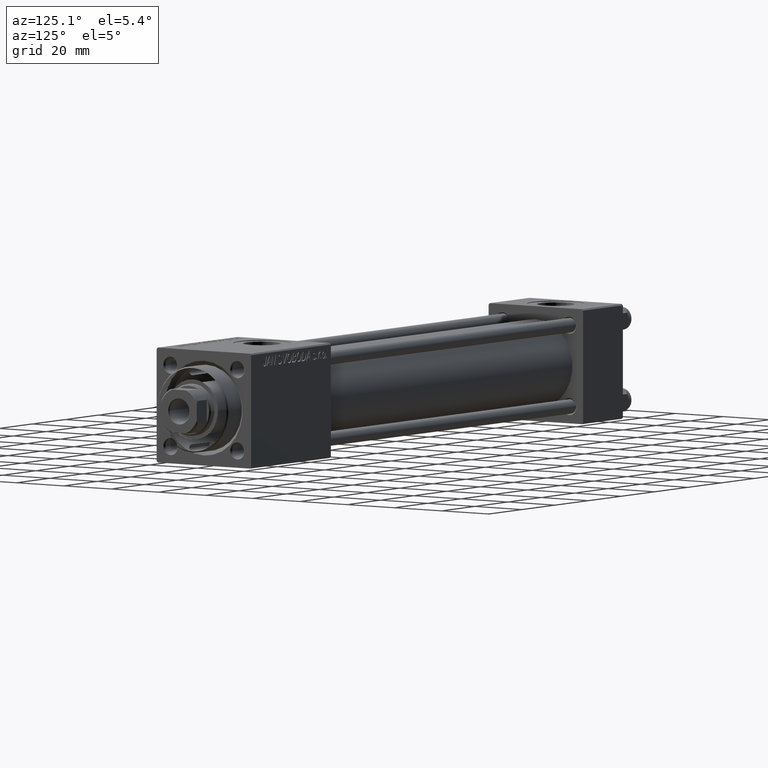
[diagram: clean part render]
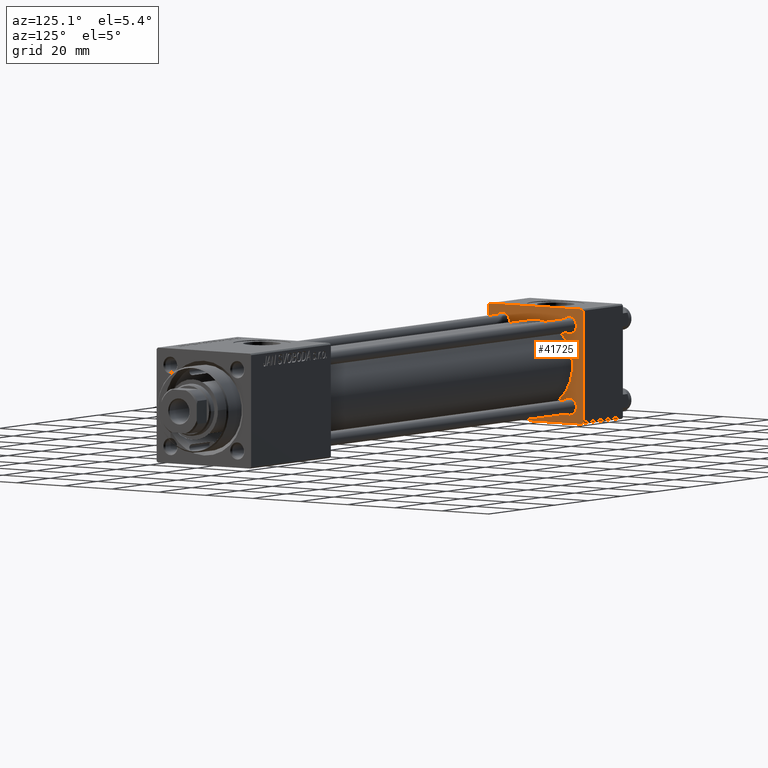
[diagram: same view with one face highlighted and labeled with its STEP entity id]
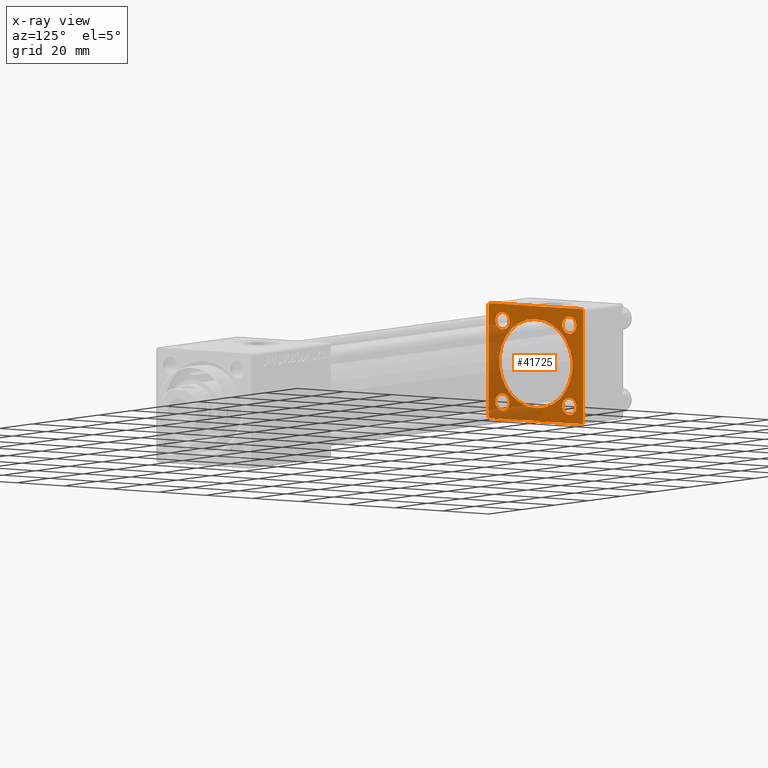
[diagram: x-ray of the same camera — body ghosted, the highlighted face saturated]
A machine part, auxiliary view. The second image highlights one B-rep face of the part: STEP entity #41725.
The next image is the same camera in x-ray: the body ghosted, the highlighted face saturated — about 37% of this face is hidden behind the body in this view.
In plain terms, the highlighted planar face has unit normal (-1, 0, 0).
Its self-contained STEP definition (entity closure, byte-faithful):
#539 = DIRECTION ( 'NONE',  ( -1.000000000000000000, -0.000000000000000000, -0.000000000000000000 ) ) ;
#565 = CARTESIAN_POINT ( 'NONE',  ( 24.00000000000000000, 20.00000000000000000, -19.50000000000002132 ) ) ;
#1479 = EDGE_CURVE ( 'NONE', #4516, #10721, #27253, .T. ) ;
#1896 = VERTEX_POINT ( 'NONE', #33484 ) ;
#2009 = EDGE_CURVE ( 'NONE', #23454, #47732, #24040, .T. ) ;
#2177 = EDGE_CURVE ( 'NONE', #36191, #48518, #50095, .T. ) ;
#2842 = ORIENTED_EDGE ( 'NONE', *, *, #26145, .T. ) ;
#3323 = EDGE_LOOP ( 'NONE', ( #46028, #7500 ) ) ;
#4227 = DIRECTION ( 'NONE',  ( 0.000000000000000000, 0.000000000000000000, 1.000000000000000000 ) ) ;
#4479 = FACE_BOUND ( 'NONE', #3323, .T. ) ;
#4488 = DIRECTION ( 'NONE',  ( 1.000000000000000000, 0.000000000000000000, 0.000000000000000000 ) ) ;
#4516 = VERTEX_POINT ( 'NONE', #40225 ) ;
#4533 = ORIENTED_EDGE ( 'NONE', *, *, #1479, .T. ) ;
#4982 = FACE_BOUND ( 'NONE', #6777, .T. ) ;
#5051 = EDGE_CURVE ( 'NONE', #31626, #17339, #19409, .T. ) ;
#5105 = VERTEX_POINT ( 'NONE', #21171 ) ;
#5602 = CIRCLE ( 'NONE', #38839, 3.000000000000059952 ) ;
#5983 = DIRECTION ( 'NONE',  ( -0.000000000000000000, 0.7071067811865524577, 0.7071067811865426878 ) ) ;
#6159 = LINE ( 'NONE', #36900, #38694 ) ;
#6451 = CARTESIAN_POINT ( 'NONE',  ( 24.00000000000000000, 14.14999999999999858, 11.14999999999994351 ) ) ;
#6491 = CARTESIAN_POINT ( 'NONE',  ( 24.00000000000000000, -14.14999999999999503, 17.15000000000003766 ) ) ;
#6777 = EDGE_LOOP ( 'NONE', ( #9570, #17761 ) ) ;
#6974 = CARTESIAN_POINT ( 'NONE',  ( 24.00000000000000000, -19.50000000000000711, -20.00000000000000000 ) ) ;
#7405 = CARTESIAN_POINT ( 'NONE',  ( 24.00000000000000000, 19.50000000000000711, -20.00000000000000711 ) ) ;
#7500 = ORIENTED_EDGE ( 'NONE', *, *, #7613, .T. ) ;
#7588 = CARTESIAN_POINT ( 'NONE',  ( 23.99999999999999289, -2.602085213965210642E-15, 0.000000000000000000 ) ) ;
#7613 = EDGE_CURVE ( 'NONE', #41758, #20968, #43641, .T. ) ;
#8286 = FACE_BOUND ( 'NONE', #26698, .T. ) ;
#8467 = DIRECTION ( 'NONE',  ( 0.000000000000000000, -0.7071067811865425767, 0.7071067811865525687 ) ) ;
#8534 = DIRECTION ( 'NONE',  ( -1.000000000000000000, 0.000000000000000000, -0.000000000000000000 ) ) ;
#8668 = DIRECTION ( 'NONE',  ( 0.000000000000000000, 0.000000000000000000, 1.000000000000000000 ) ) ;
#9066 = VERTEX_POINT ( 'NONE', #44349 ) ;
#9333 = CARTESIAN_POINT ( 'NONE',  ( 24.00000000000000000, 20.00000000000000000, -20.00000000000000711 ) ) ;
#9570 = ORIENTED_EDGE ( 'NONE', *, *, #9621, .T. ) ;
#9621 = EDGE_CURVE ( 'NONE', #36374, #10508, #42908, .T. ) ;
#9786 = LINE ( 'NONE', #41280, #49408 ) ;
#9819 = DIRECTION ( 'NONE',  ( 0.000000000000000000, 0.000000000000000000, 1.000000000000000000 ) ) ;
#10030 = DIRECTION ( 'NONE',  ( -1.000000000000000000, -0.000000000000000000, -0.000000000000000000 ) ) ;
#10392 = AXIS2_PLACEMENT_3D ( 'NONE', #16798, #43472, #8668 ) ;
#10508 = VERTEX_POINT ( 'NONE', #47543 ) ;
#10721 = VERTEX_POINT ( 'NONE', #41423 ) ;
#11743 = DIRECTION ( 'NONE',  ( -1.000000000000000000, -0.000000000000000000, -0.000000000000000000 ) ) ;
#12013 = LINE ( 'NONE', #47314, #13001 ) ;
#12624 = EDGE_CURVE ( 'NONE', #1896, #9066, #46228, .T. ) ;
#12683 = ORIENTED_EDGE ( 'NONE', *, *, #13751, .T. ) ;
#12861 = CARTESIAN_POINT ( 'NONE',  ( 24.00000000000000000, -19.50000000000000711, -20.00000000000000000 ) ) ;
#13001 = VECTOR ( 'NONE', #27489, 1000.000000000000000 ) ;
#13091 = ORIENTED_EDGE ( 'NONE', *, *, #12624, .T. ) ;
#13140 = DIRECTION ( 'NONE',  ( -1.000000000000000000, -0.000000000000000000, -0.000000000000000000 ) ) ;
#13367 = DIRECTION ( 'NONE',  ( -1.000000000000000000, -0.000000000000000000, -0.000000000000000000 ) ) ;
#13670 = DIRECTION ( 'NONE',  ( 0.000000000000000000, -1.000000000000000000, 1.734723475976807094E-16 ) ) ;
#13751 = EDGE_CURVE ( 'NONE', #17339, #23454, #12013, .T. ) ;
#13785 = ORIENTED_EDGE ( 'NONE', *, *, #18474, .T. ) ;
#13955 = ORIENTED_EDGE ( 'NONE', *, *, #45351, .T. ) ;
#15016 = VECTOR ( 'NONE', #20267, 1000.000000000000000 ) ;
#15470 = EDGE_CURVE ( 'NONE', #20661, #5105, #39034, .T. ) ;
#15556 = DIRECTION ( 'NONE',  ( 0.000000000000000000, 0.000000000000000000, 1.000000000000000000 ) ) ;
#15564 = EDGE_LOOP ( 'NONE', ( #29259, #2842, #47740, #4533, #13955, #44438, #12683, #36242 ) ) ;
#15667 = CARTESIAN_POINT ( 'NONE',  ( 24.00000000000000000, 0.000000000000000000, 0.000000000000000000 ) ) ;
#15845 = CARTESIAN_POINT ( 'NONE',  ( 24.00000000000000000, -20.00000000000000355, 19.49999999999998224 ) ) ;
#16798 = CARTESIAN_POINT ( 'NONE',  ( 24.00000000000000000, -14.14999999999999503, 14.15000000000000391 ) ) ;
#17206 = LINE ( 'NONE', #24815, #15016 ) ;
#17339 = VERTEX_POINT ( 'NONE', #40104 ) ;
#17761 = ORIENTED_EDGE ( 'NONE', *, *, #25895, .T. ) ;
#17973 = CIRCLE ( 'NONE', #24449, 15.50000000000000000 ) ;
#18474 = EDGE_CURVE ( 'NONE', #9066, #1896, #20914, .T. ) ;
#19409 = LINE ( 'NONE', #15845, #48424 ) ;
#19728 = DIRECTION ( 'NONE',  ( -1.000000000000000000, -0.000000000000000000, -0.000000000000000000 ) ) ;
#19738 = DIRECTION ( 'NONE',  ( 0.000000000000000000, 0.7071067811865401342, -0.7071067811865549002 ) ) ;
#19954 = ORIENTED_EDGE ( 'NONE', *, *, #15470, .F. ) ;
#20267 = DIRECTION ( 'NONE',  ( 0.000000000000000000, -1.000000000000000000, -2.602085213965210149E-16 ) ) ;
#20489 = PLANE ( 'NONE',  #21414 ) ;
#20661 = VERTEX_POINT ( 'NONE', #27658 ) ;
#20858 = CARTESIAN_POINT ( 'NONE',  ( 24.00000000000000000, -14.14999999999999503, 14.15000000000000391 ) ) ;
#20914 = CIRCLE ( 'NONE', #45122, 3.000000000000031974 ) ;
#20968 = VERTEX_POINT ( 'NONE', #47913 ) ;
#21171 = CARTESIAN_POINT ( 'NONE',  ( 23.99999999999999289, -2.602085213965210642E-15, 15.50000000000000000 ) ) ;
#21414 = AXIS2_PLACEMENT_3D ( 'NONE', #15667, #8534, #35967 ) ;
#21794 = LINE ( 'NONE', #9333, #24422 ) ;
#22680 = CARTESIAN_POINT ( 'NONE',  ( 24.00000000000000000, 14.14999999999999858, 14.15000000000000036 ) ) ;
#23454 = VERTEX_POINT ( 'NONE', #42068 ) ;
#23525 = CARTESIAN_POINT ( 'NONE',  ( 24.00000000000000000, 14.14999999999999858, -14.15000000000000036 ) ) ;
#24040 = LINE ( 'NONE', #12861, #36287 ) ;
#24324 = ORIENTED_EDGE ( 'NONE', *, *, #35896, .F. ) ;
#24422 = VECTOR ( 'NONE', #13670, 1000.000000000000000 ) ;
#24449 = AXIS2_PLACEMENT_3D ( 'NONE', #7588, #27646, #31716 ) ;
#24815 = CARTESIAN_POINT ( 'NONE',  ( 24.00000000000000000, 20.00000000000000000, 20.00000000000000000 ) ) ;
#24926 = AXIS2_PLACEMENT_3D ( 'NONE', #32915, #13367, #48400 ) ;
#25895 = EDGE_CURVE ( 'NONE', #10508, #36374, #5602, .T. ) ;
#26145 = EDGE_CURVE ( 'NONE', #26152, #33694, #9786, .T. ) ;
#26152 = VERTEX_POINT ( 'NONE', #7405 ) ;
#26698 = EDGE_LOOP ( 'NONE', ( #30764, #30194 ) ) ;
#27253 = LINE ( 'NONE', #43267, #44366 ) ;
#27334 = CARTESIAN_POINT ( 'NONE',  ( 23.99999999999999289, -2.602085213965210642E-15, 0.000000000000000000 ) ) ;
#27489 = DIRECTION ( 'NONE',  ( 0.000000000000000000, 8.673617379884036705E-17, -1.000000000000000000 ) ) ;
#27614 = CIRCLE ( 'NONE', #30890, 3.000000000000031974 ) ;
#27646 = DIRECTION ( 'NONE',  ( 1.000000000000000000, 0.000000000000000000, 0.000000000000000000 ) ) ;
#27658 = CARTESIAN_POINT ( 'NONE',  ( 23.99999999999999289, -7.038826752868131828E-16, -15.50000000000000000 ) ) ;
#29259 = ORIENTED_EDGE ( 'NONE', *, *, #29573, .F. ) ;
#29573 = EDGE_CURVE ( 'NONE', #26152, #47732, #21794, .T. ) ;
#30125 = AXIS2_PLACEMENT_3D ( 'NONE', #27334, #4488, #42836 ) ;
#30194 = ORIENTED_EDGE ( 'NONE', *, *, #2177, .T. ) ;
#30764 = ORIENTED_EDGE ( 'NONE', *, *, #49526, .T. ) ;
#30890 = AXIS2_PLACEMENT_3D ( 'NONE', #20858, #539, #39907 ) ;
#31158 = FACE_BOUND ( 'NONE', #48128, .T. ) ;
#31626 = VERTEX_POINT ( 'NONE', #36256 ) ;
#31716 = DIRECTION ( 'NONE',  ( 0.000000000000000000, 0.000000000000000000, 1.000000000000000000 ) ) ;
#32915 = CARTESIAN_POINT ( 'NONE',  ( 24.00000000000000000, 14.14999999999999858, -14.15000000000000036 ) ) ;
#33484 = CARTESIAN_POINT ( 'NONE',  ( 24.00000000000000000, -14.14999999999999503, -17.15000000000003766 ) ) ;
#33694 = VERTEX_POINT ( 'NONE', #565 ) ;
#33895 = DIRECTION ( 'NONE',  ( 0.000000000000000000, 0.000000000000000000, 1.000000000000000000 ) ) ;
#33914 = CARTESIAN_POINT ( 'NONE',  ( 24.00000000000000000, 14.14999999999999858, -17.15000000000006253 ) ) ;
#35457 = FACE_OUTER_BOUND ( 'NONE', #15564, .T. ) ;
#35896 = EDGE_CURVE ( 'NONE', #5105, #20661, #17973, .T. ) ;
#35967 = DIRECTION ( 'NONE',  ( -0.000000000000000000, 0.000000000000000000, 1.000000000000000000 ) ) ;
#36191 = VERTEX_POINT ( 'NONE', #43042 ) ;
#36212 = FACE_BOUND ( 'NONE', #43748, .T. ) ;
#36242 = ORIENTED_EDGE ( 'NONE', *, *, #2009, .T. ) ;
#36256 = CARTESIAN_POINT ( 'NONE',  ( 24.00000000000000000, -19.49999999999999289, 19.99999999999998934 ) ) ;
#36287 = VECTOR ( 'NONE', #19738, 1000.000000000000000 ) ;
#36374 = VERTEX_POINT ( 'NONE', #6451 ) ;
#36900 = CARTESIAN_POINT ( 'NONE',  ( 24.00000000000000000, 20.00000000000000000, 20.00000000000000000 ) ) ;
#37152 = DIRECTION ( 'NONE',  ( 0.000000000000000000, 0.000000000000000000, -1.000000000000000000 ) ) ;
#38512 = CARTESIAN_POINT ( 'NONE',  ( 24.00000000000000000, 14.14999999999999858, 14.15000000000000036 ) ) ;
#38694 = VECTOR ( 'NONE', #37152, 1000.000000000000000 ) ;
#38839 = AXIS2_PLACEMENT_3D ( 'NONE', #38512, #49951, #4227 ) ;
#39034 = CIRCLE ( 'NONE', #30125, 15.50000000000000000 ) ;
#39044 = AXIS2_PLACEMENT_3D ( 'NONE', #23525, #19728, #39262 ) ;
#39262 = DIRECTION ( 'NONE',  ( 0.000000000000000000, 0.000000000000000000, 1.000000000000000000 ) ) ;
#39907 = DIRECTION ( 'NONE',  ( 0.000000000000000000, 0.000000000000000000, 1.000000000000000000 ) ) ;
#40104 = CARTESIAN_POINT ( 'NONE',  ( 24.00000000000000000, -20.00000000000000355, 19.49999999999998224 ) ) ;
#40225 = CARTESIAN_POINT ( 'NONE',  ( 24.00000000000000000, 20.00000000000000000, 19.49999999999999289 ) ) ;
#41280 = CARTESIAN_POINT ( 'NONE',  ( 24.00000000000000000, 20.00000000000000000, -19.50000000000002132 ) ) ;
#41297 = AXIS2_PLACEMENT_3D ( 'NONE', #22680, #11743, #15556 ) ;
#41423 = CARTESIAN_POINT ( 'NONE',  ( 24.00000000000000000, 19.50000000000000000, 20.00000000000000000 ) ) ;
#41481 = CIRCLE ( 'NONE', #39044, 3.000000000000059952 ) ;
#41725 = ADVANCED_FACE ( 'NONE', ( #36212, #8286, #4479, #4982, #31158, #35457 ), #20489, .F. ) ;
#41758 = VERTEX_POINT ( 'NONE', #6491 ) ;
#42068 = CARTESIAN_POINT ( 'NONE',  ( 24.00000000000000000, -20.00000000000000000, -19.49999999999999645 ) ) ;
#42836 = DIRECTION ( 'NONE',  ( 0.000000000000000000, 0.000000000000000000, 1.000000000000000000 ) ) ;
#42908 = CIRCLE ( 'NONE', #41297, 3.000000000000059952 ) ;
#43042 = CARTESIAN_POINT ( 'NONE',  ( 24.00000000000000000, 14.14999999999999858, -11.14999999999994351 ) ) ;
#43267 = CARTESIAN_POINT ( 'NONE',  ( 24.00000000000000000, 19.50000000000000000, 20.00000000000000000 ) ) ;
#43472 = DIRECTION ( 'NONE',  ( -1.000000000000000000, -0.000000000000000000, -0.000000000000000000 ) ) ;
#43641 = CIRCLE ( 'NONE', #10392, 3.000000000000031974 ) ;
#43748 = EDGE_LOOP ( 'NONE', ( #13091, #13785 ) ) ;
#44349 = CARTESIAN_POINT ( 'NONE',  ( 24.00000000000000000, -14.14999999999999503, -11.14999999999997193 ) ) ;
#44366 = VECTOR ( 'NONE', #8467, 999.9999999999998863 ) ;
#44438 = ORIENTED_EDGE ( 'NONE', *, *, #5051, .T. ) ;
#44836 = CARTESIAN_POINT ( 'NONE',  ( 24.00000000000000000, -14.14999999999999503, -14.15000000000000391 ) ) ;
#45122 = AXIS2_PLACEMENT_3D ( 'NONE', #47929, #13140, #9819 ) ;
#45351 = EDGE_CURVE ( 'NONE', #10721, #31626, #17206, .T. ) ;
#46028 = ORIENTED_EDGE ( 'NONE', *, *, #48172, .T. ) ;
#46228 = CIRCLE ( 'NONE', #49486, 3.000000000000031974 ) ;
#46571 = DIRECTION ( 'NONE',  ( -0.000000000000000000, -0.7071067811865500152, -0.7071067811865451302 ) ) ;
#47251 = EDGE_CURVE ( 'NONE', #4516, #33694, #6159, .T. ) ;
#47314 = CARTESIAN_POINT ( 'NONE',  ( 24.00000000000000000, -20.00000000000000355, 19.99999999999998934 ) ) ;
#47543 = CARTESIAN_POINT ( 'NONE',  ( 24.00000000000000000, 14.14999999999999858, 17.15000000000006253 ) ) ;
#47732 = VERTEX_POINT ( 'NONE', #6974 ) ;
#47740 = ORIENTED_EDGE ( 'NONE', *, *, #47251, .F. ) ;
#47913 = CARTESIAN_POINT ( 'NONE',  ( 24.00000000000000000, -14.14999999999999503, 11.14999999999997193 ) ) ;
#47929 = CARTESIAN_POINT ( 'NONE',  ( 24.00000000000000000, -14.14999999999999503, -14.15000000000000391 ) ) ;
#48128 = EDGE_LOOP ( 'NONE', ( #24324, #19954 ) ) ;
#48172 = EDGE_CURVE ( 'NONE', #20968, #41758, #27614, .T. ) ;
#48400 = DIRECTION ( 'NONE',  ( 0.000000000000000000, 0.000000000000000000, 1.000000000000000000 ) ) ;
#48424 = VECTOR ( 'NONE', #46571, 1000.000000000000114 ) ;
#48518 = VERTEX_POINT ( 'NONE', #33914 ) ;
#49408 = VECTOR ( 'NONE', #5983, 1000.000000000000000 ) ;
#49486 = AXIS2_PLACEMENT_3D ( 'NONE', #44836, #10030, #33895 ) ;
#49526 = EDGE_CURVE ( 'NONE', #48518, #36191, #41481, .T. ) ;
#49951 = DIRECTION ( 'NONE',  ( -1.000000000000000000, -0.000000000000000000, -0.000000000000000000 ) ) ;
#50095 = CIRCLE ( 'NONE', #24926, 3.000000000000059952 ) ;